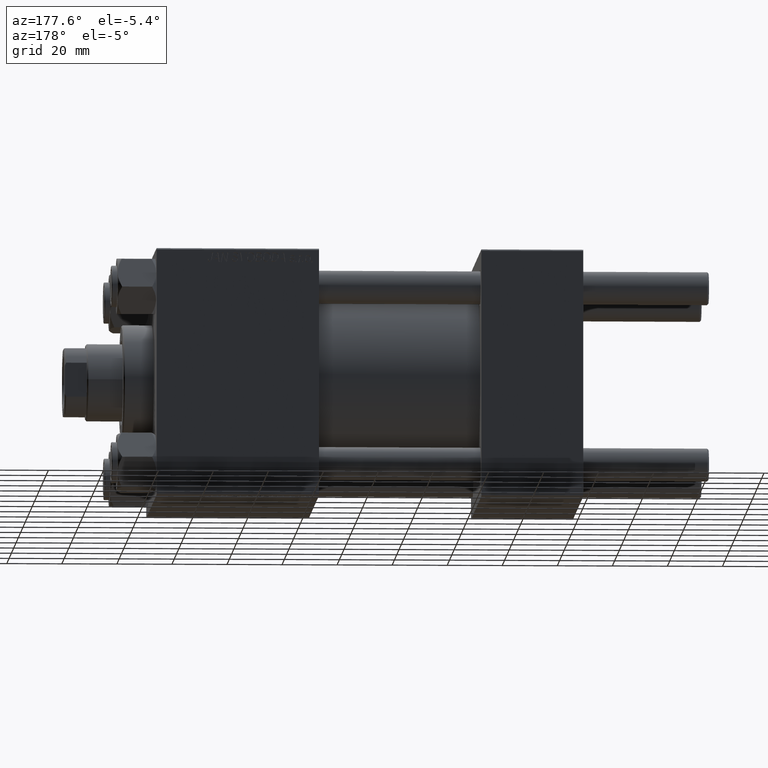
[diagram: clean part render]
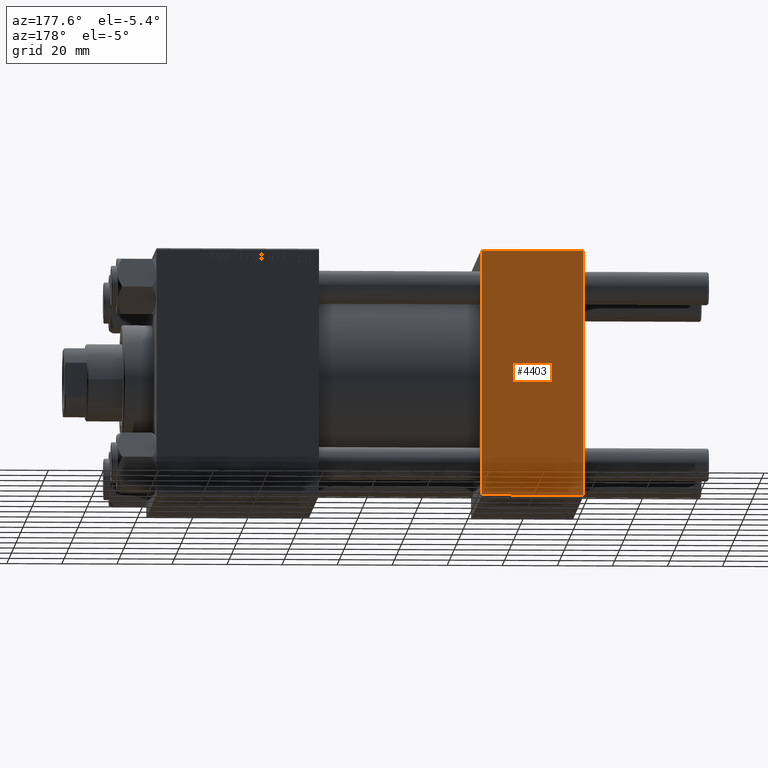
[diagram: same view with one face highlighted and labeled with its STEP entity id]
A machine part, auxiliary view. The second image highlights one B-rep face of the part: STEP entity #4403.
In plain terms, the highlighted planar face has unit normal (0, 1, 0).
Its self-contained STEP definition (entity closure, byte-faithful):
#1001 = DIRECTION ( 'NONE',  ( -0.000000000000000000, 1.000000000000000000, 0.000000000000000000 ) ) ;
#2354 = CARTESIAN_POINT ( 'NONE',  ( 0.000000000000000000, 44.99999999999998579, 44.50000000000001421 ) ) ;
#4403 = ADVANCED_FACE ( 'NONE', ( #7803 ), #15390, .T. ) ;
#4524 = DIRECTION ( 'NONE',  ( 0.000000000000000000, -0.000000000000000000, 1.000000000000000000 ) ) ;
#7413 = EDGE_CURVE ( 'NONE', #31977, #35512, #9188, .T. ) ;
#7803 = FACE_OUTER_BOUND ( 'NONE', #48902, .T. ) ;
#8982 = VECTOR ( 'NONE', #15773, 1000.000000000000000 ) ;
#9118 = CARTESIAN_POINT ( 'NONE',  ( 37.00000000000000000, 44.99999999999998579, -44.49999999999998579 ) ) ;
#9188 = LINE ( 'NONE', #19800, #8982 ) ;
#10125 = VECTOR ( 'NONE', #15372, 1000.000000000000000 ) ;
#12681 = EDGE_CURVE ( 'NONE', #35512, #19794, #44233, .T. ) ;
#12827 = EDGE_CURVE ( 'NONE', #18005, #19794, #22240, .T. ) ;
#13995 = VECTOR ( 'NONE', #14403, 1000.000000000000000 ) ;
#14403 = DIRECTION ( 'NONE',  ( 0.000000000000000000, 0.000000000000000000, -1.000000000000000000 ) ) ;
#15372 = DIRECTION ( 'NONE',  ( 1.000000000000000000, 0.000000000000000000, 0.000000000000000000 ) ) ;
#15390 = PLANE ( 'NONE',  #43678 ) ;
#15773 = DIRECTION ( 'NONE',  ( 0.000000000000000000, 0.000000000000000000, -1.000000000000000000 ) ) ;
#16621 = ORIENTED_EDGE ( 'NONE', *, *, #12681, .T. ) ;
#18005 = VERTEX_POINT ( 'NONE', #2354 ) ;
#19146 = LINE ( 'NONE', #49987, #10125 ) ;
#19794 = VERTEX_POINT ( 'NONE', #43421 ) ;
#19800 = CARTESIAN_POINT ( 'NONE',  ( 37.00000000000000000, 44.99999999999998579, 45.00000000000001421 ) ) ;
#21895 = CARTESIAN_POINT ( 'NONE',  ( 37.00000000000000000, 44.99999999999998579, -44.49999999999995737 ) ) ;
#22240 = LINE ( 'NONE', #30068, #13995 ) ;
#24855 = ORIENTED_EDGE ( 'NONE', *, *, #26406, .T. ) ;
#25131 = ORIENTED_EDGE ( 'NONE', *, *, #7413, .T. ) ;
#26406 = EDGE_CURVE ( 'NONE', #18005, #31977, #19146, .T. ) ;
#30068 = CARTESIAN_POINT ( 'NONE',  ( 0.000000000000000000, 44.99999999999998579, 45.00000000000001421 ) ) ;
#31714 = ORIENTED_EDGE ( 'NONE', *, *, #12827, .F. ) ;
#31977 = VERTEX_POINT ( 'NONE', #32375 ) ;
#32375 = CARTESIAN_POINT ( 'NONE',  ( 37.00000000000000000, 44.99999999999998579, 44.50000000000001421 ) ) ;
#35512 = VERTEX_POINT ( 'NONE', #21895 ) ;
#42670 = CARTESIAN_POINT ( 'NONE',  ( 37.00000000000000000, 44.99999999999998579, 45.00000000000001421 ) ) ;
#43421 = CARTESIAN_POINT ( 'NONE',  ( 0.000000000000000000, 44.99999999999998579, -44.49999999999995737 ) ) ;
#43678 = AXIS2_PLACEMENT_3D ( 'NONE', #42670, #1001, #4524 ) ;
#44233 = LINE ( 'NONE', #9118, #45487 ) ;
#44485 = DIRECTION ( 'NONE',  ( -1.000000000000000000, 0.000000000000000000, 0.000000000000000000 ) ) ;
#45487 = VECTOR ( 'NONE', #44485, 1000.000000000000000 ) ;
#48902 = EDGE_LOOP ( 'NONE', ( #25131, #16621, #31714, #24855 ) ) ;
#49987 = CARTESIAN_POINT ( 'NONE',  ( 37.00000000000000000, 44.99999999999998579, 44.50000000000001421 ) ) ;